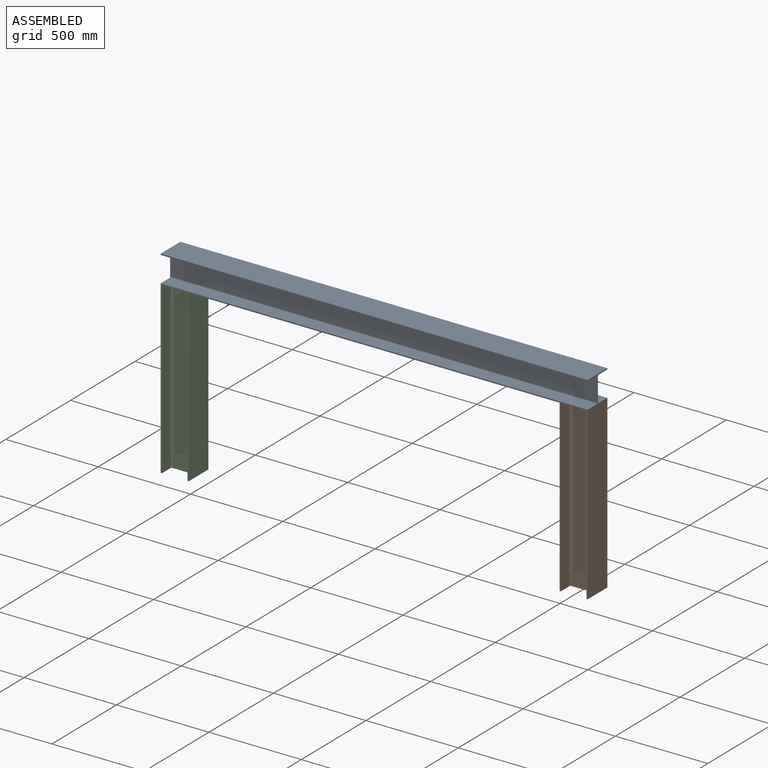
[diagram: assembled view]
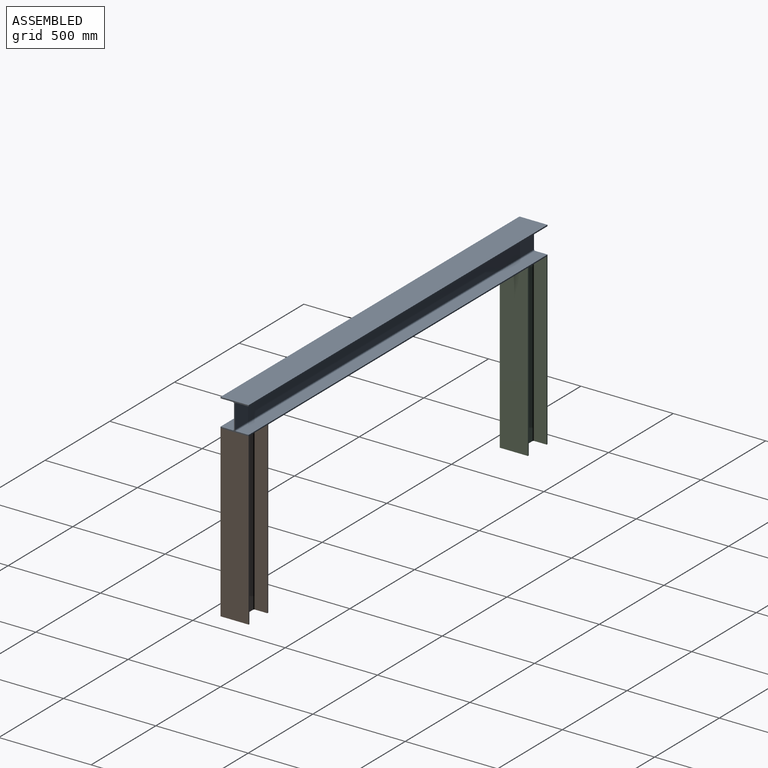
[diagram: assembled view, second angle]
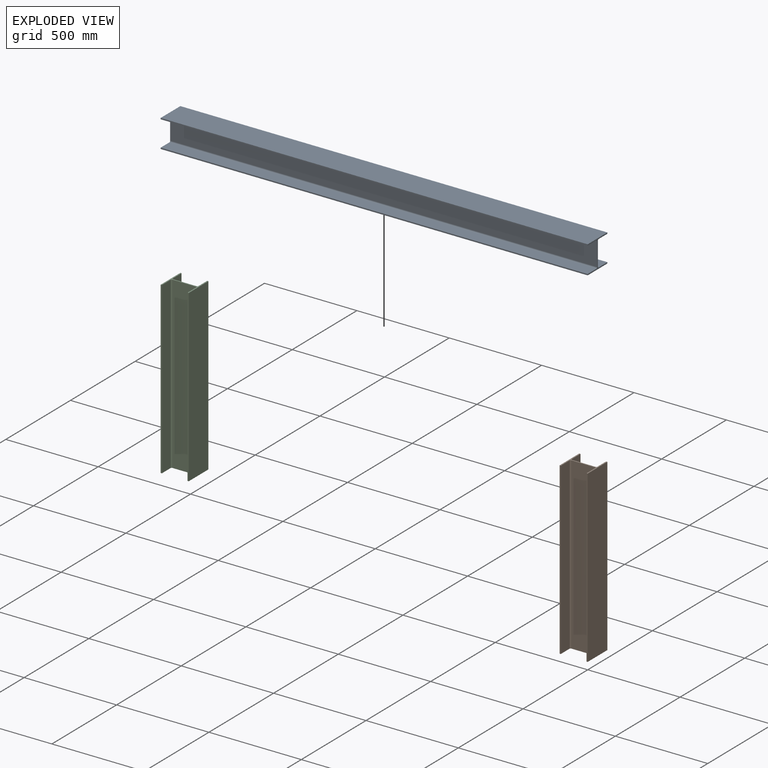
[diagram: exploded view]
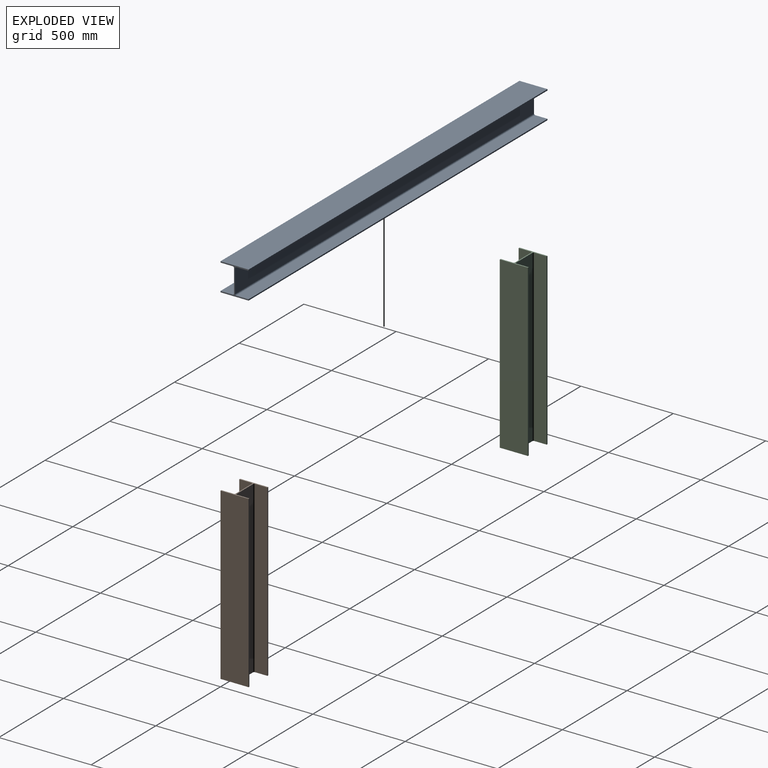
[diagram: exploded view, second angle]
ASSEMBLY  parts=3 mates=2
PART A: 18 faces, bbox 152x2311.4x152 mm
  f0: plane 2311.4x67.08mm, normal (0,0,1), area 155048.7mm2, adj f1,f15,f16,f17
  f1: plane 2311.4x6.6mm, normal (-1,0,0), area 15255.2mm2, adj f0,f2,f16,f17
  f2: plane 2311.4x152mm, normal (0,0,-1), area 351332.8mm2, adj f1,f3,f16,f17
  f3: plane 2311.4x6.6mm, normal (1,0,0), area 15255.2mm2, adj f2,f4,f16,f17
  f4: plane 2311.4x67.08mm, normal (0,0,1), area 155048.7mm2, adj f3,f5,f16,f17
  f5: cylinder r=6mm len=2311.4mm, axis (0,1,0), area 21784.4mm2, adj f4,f6,f16,f17
  f6: plane 2311.4x126.8mm, normal (1,0,0), area 293085.5mm2, adj f5,f7,f16,f17
  f7: cylinder r=6mm len=2311.4mm, axis (0,1,0), area 21784.4mm2, adj f6,f8,f16,f17
  f8: plane 2311.4x67.08mm, normal (0,0,-1), area 155048.7mm2, adj f7,f9,f16,f17
  f9: plane 2311.4x6.6mm, normal (1,0,0), area 15255.2mm2, adj f8,f10,f16,f17
  f10: plane 2311.4x152mm, normal (0,0,1), area 351332.8mm2, adj f9,f11,f16,f17
  f11: plane 2311.4x6.6mm, normal (-1,0,0), area 15255.2mm2, adj f10,f12,f16,f17
  f12: plane 2311.4x67.08mm, normal (0,0,-1), area 155048.7mm2, adj f11,f13,f16,f17
  f13: cylinder r=6mm len=2311.4mm, axis (0,1,0), area 21784.4mm2, adj f12,f14,f16,f17
  f14: plane 2311.4x126.8mm, normal (-1,0,0), area 293085.5mm2, adj f13,f15,f16,f17
  f15: cylinder r=6mm len=2311.4mm, axis (0,1,0), area 21784.4mm2, adj f0,f14,f16,f17
  f16: plane 152x152mm, normal (0,-1,0), area 2847.9mm2, adj f0,f1,f2,f3,f4,f5,f6,f7
  f17: plane 152x152mm, normal (0,1,0), area 2847.9mm2, adj f0,f1,f2,f3,f4,f5,f6,f7
PART B: 18 faces, bbox 152x921.2x152 mm
  f0: plane 921.15x67.08mm, normal (0,0,1), area 61790.7mm2, adj f1,f15,f16,f17
  f1: plane 921.15x6.6mm, normal (-1,0,0), area 6079.6mm2, adj f0,f2,f16,f17
  f2: plane 921.15x152mm, normal (0,0,-1), area 140014.8mm2, adj f1,f3,f16,f17
  f3: plane 921.15x6.6mm, normal (1,0,0), area 6079.6mm2, adj f2,f4,f16,f17
  f4: plane 921.15x67.08mm, normal (0,0,1), area 61790.7mm2, adj f3,f5,f16,f17
  f5: cylinder r=6mm len=921.15mm, axis (0,1,0), area 8681.6mm2, adj f4,f6,f16,f17
  f6: plane 921.15x126.8mm, normal (1,0,0), area 116801.8mm2, adj f5,f7,f16,f17
  f7: cylinder r=6mm len=921.15mm, axis (0,1,0), area 8681.6mm2, adj f6,f8,f16,f17
  f8: plane 921.15x67.08mm, normal (0,0,-1), area 61790.7mm2, adj f7,f9,f16,f17
  f9: plane 921.15x6.6mm, normal (1,0,0), area 6079.6mm2, adj f8,f10,f16,f17
  f10: plane 921.15x152mm, normal (0,0,1), area 140014.8mm2, adj f9,f11,f16,f17
  f11: plane 921.15x6.6mm, normal (-1,0,0), area 6079.6mm2, adj f10,f12,f16,f17
  f12: plane 921.15x67.08mm, normal (0,0,-1), area 61790.7mm2, adj f11,f13,f16,f17
  f13: cylinder r=6mm len=921.15mm, axis (0,1,0), area 8681.6mm2, adj f12,f14,f16,f17
  f14: plane 921.15x126.8mm, normal (-1,0,0), area 116801.8mm2, adj f13,f15,f16,f17
  f15: cylinder r=6mm len=921.15mm, axis (0,1,0), area 8681.6mm2, adj f0,f14,f16,f17
  f16: plane 152x152mm, normal (0,-1,0), area 2847.9mm2, adj f0,f1,f2,f3,f4,f5,f6,f7
  f17: plane 152x152mm, normal (0,1,0), area 2847.9mm2, adj f0,f1,f2,f3,f4,f5,f6,f7
PART C: same geometry as B
PLACE A rot(axis=(0,0,1),90deg) t=(-2311.4,76,76)mm
PLACE B rot(axis=(0.58,0.58,0.58),120deg) t=(-76,76,0)mm
PLACE C rot(axis=(0.58,0.58,0.58),120deg) t=(-2235.4,76,0)mm
MATE fastened B.f17 <-> A.f2  axis (0,0,1) through (0,152,0)mm
MATE fastened C.f17 <-> A.f2  axis (0,0,1) through (-2311.4,152,0)mm
